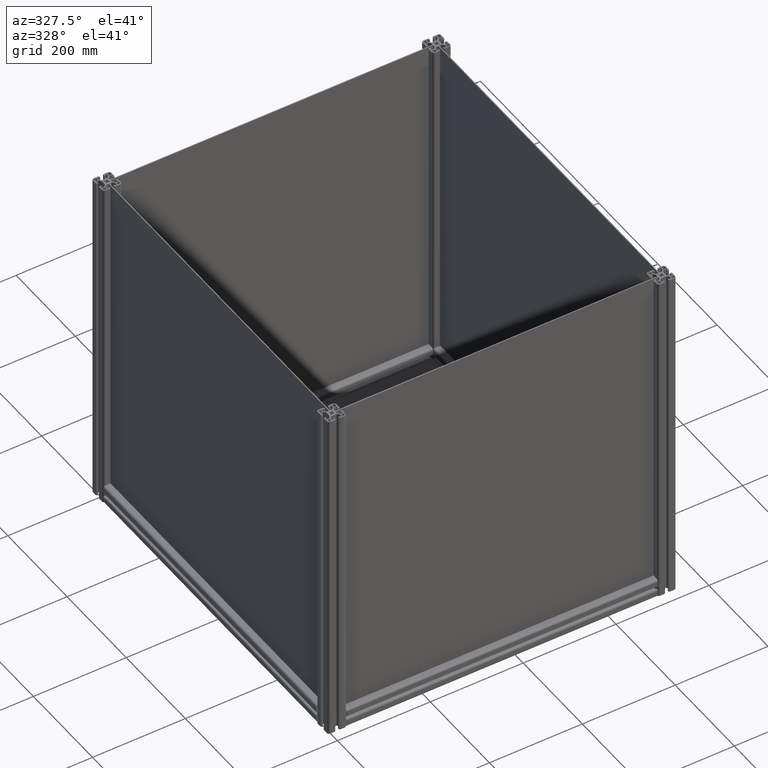
[diagram: clean part render]
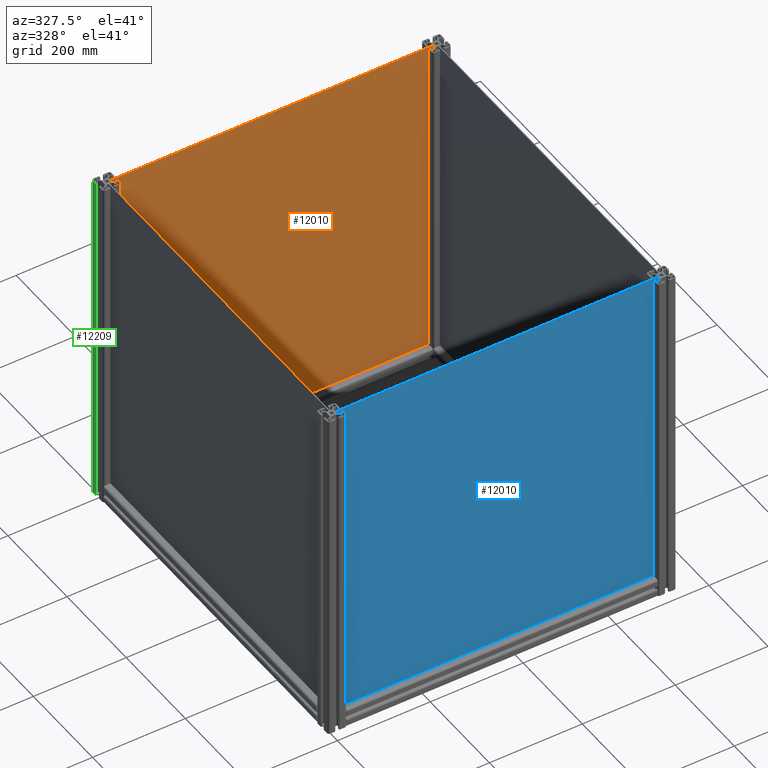
[diagram: same view with three faces highlighted in distinct colors, each labeled with its STEP entity id]
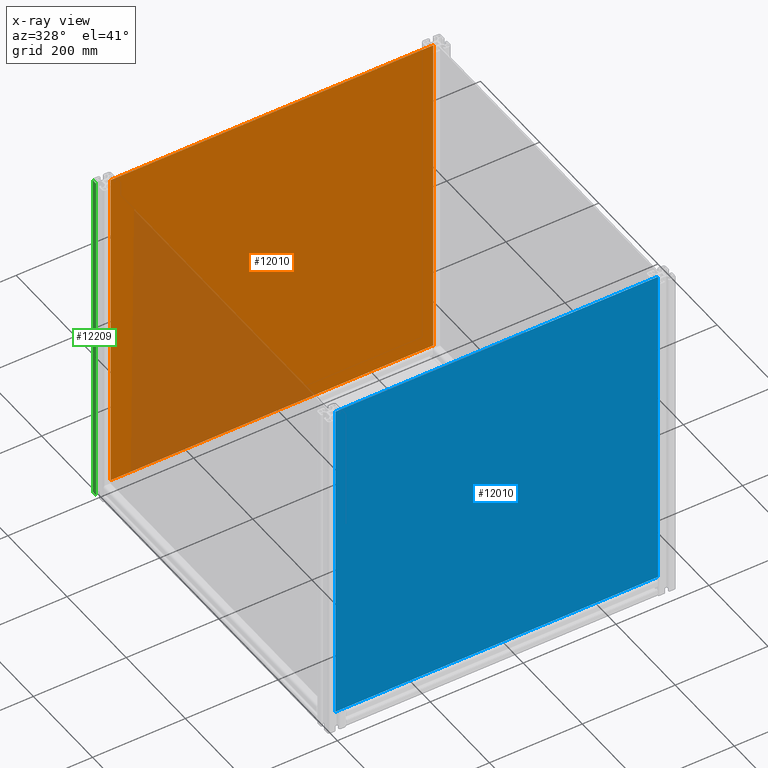
[diagram: x-ray of the same camera — body ghosted, the three highlighted faces saturated]
A machine part, auxiliary view with three faces highlighted in distinct colors.
The next image is the same camera in x-ray (body ghosted, the three faces saturated) — at least one of them is partly hidden behind the body in this view.
Their STEP definitions:

[orange] entity #12010 — the highlighted planar face has unit normal (0, 1, 0).
#161 = CARTESIAN_POINT ( 'NONE',  ( 94.07303754266186502, -486.9269624573379929, -2.000000000000000000 ) ) ;
#194 = LINE ( 'NONE', #14837, #5727 ) ;
#1227 = ORIENTED_EDGE ( 'NONE', *, *, #11155, .F. ) ;
#2917 = VERTEX_POINT ( 'NONE', #161 ) ;
#3395 = VERTEX_POINT ( 'NONE', #12340 ) ;
#3813 = VECTOR ( 'NONE', #12190, 1000.000000000000000 ) ;
#4709 = PLANE ( 'NONE',  #14745 ) ;
#5316 = VERTEX_POINT ( 'NONE', #15817 ) ;
#5727 = VECTOR ( 'NONE', #11140, 1000.000000000000000 ) ;
#6227 = CARTESIAN_POINT ( 'NONE',  ( 94.07303754266186502, -486.9269624573379929, -2.000000000000000000 ) ) ;
#7067 = ORIENTED_EDGE ( 'NONE', *, *, #13036, .F. ) ;
#7339 = DIRECTION ( 'NONE',  ( 0.000000000000000000, 0.000000000000000000, 1.000000000000000000 ) ) ;
#7406 = CARTESIAN_POINT ( 'NONE',  ( -600.7269624573378906, -486.9269624573379929, -2.000000000000000000 ) ) ;
#7898 = LINE ( 'NONE', #6227, #12992 ) ;
#8033 = ORIENTED_EDGE ( 'NONE', *, *, #12094, .F. ) ;
#8630 = EDGE_LOOP ( 'NONE', ( #7067, #8033, #12961, #1227 ) ) ;
#8886 = DIRECTION ( 'NONE',  ( -1.117974313196652496E-16, 1.000000000000000000, 0.000000000000000000 ) ) ;
#9426 = EDGE_CURVE ( 'NONE', #10561, #2917, #12438, .T. ) ;
#9450 = CARTESIAN_POINT ( 'NONE',  ( 0.000000000000000000, 0.000000000000000000, -2.000000000000000000 ) ) ;
#10041 = CARTESIAN_POINT ( 'NONE',  ( -600.7269624573378906, -486.9269624573379929, -2.000000000000000000 ) ) ;
#10561 = VERTEX_POINT ( 'NONE', #10041 ) ;
#10564 = CARTESIAN_POINT ( 'NONE',  ( 94.07303754266177975, 235.4730375426625812, -2.000000000000000000 ) ) ;
#10679 = DIRECTION ( 'NONE',  ( 1.000000000000000000, 0.000000000000000000, 0.000000000000000000 ) ) ;
#11140 = DIRECTION ( 'NONE',  ( 0.000000000000000000, -1.000000000000000000, 0.000000000000000000 ) ) ;
#11155 = EDGE_CURVE ( 'NONE', #5316, #10561, #194, .T. ) ;
#12010 = ADVANCED_FACE ( 'NONE', ( #13489 ), #4709, .F. ) ;
#12094 = EDGE_CURVE ( 'NONE', #2917, #3395, #7898, .T. ) ;
#12190 = DIRECTION ( 'NONE',  ( -1.000000000000000000, 0.000000000000000000, 0.000000000000000000 ) ) ;
#12340 = CARTESIAN_POINT ( 'NONE',  ( 94.07303754266177975, 235.4730375426625812, -2.000000000000000000 ) ) ;
#12438 = LINE ( 'NONE', #7406, #12694 ) ;
#12694 = VECTOR ( 'NONE', #16319, 1000.000000000000000 ) ;
#12961 = ORIENTED_EDGE ( 'NONE', *, *, #9426, .F. ) ;
#12992 = VECTOR ( 'NONE', #8886, 1000.000000000000000 ) ;
#13036 = EDGE_CURVE ( 'NONE', #3395, #5316, #15159, .T. ) ;
#13489 = FACE_OUTER_BOUND ( 'NONE', #8630, .T. ) ;
#14745 = AXIS2_PLACEMENT_3D ( 'NONE', #9450, #7339, #10679 ) ;
#14837 = CARTESIAN_POINT ( 'NONE',  ( -600.7269624573378906, 257.8730375426625301, -2.000000000000000000 ) ) ;
#15159 = LINE ( 'NONE', #10564, #3813 ) ;
#15817 = CARTESIAN_POINT ( 'NONE',  ( -600.7269624573378906, 235.4730375426625812, -2.000000000000000000 ) ) ;
#16319 = DIRECTION ( 'NONE',  ( 1.000000000000000000, 0.000000000000000000, 0.000000000000000000 ) ) ;

[blue] entity #12010 — the highlighted planar face has unit normal (0, 1, 0).
#161 = CARTESIAN_POINT ( 'NONE',  ( 94.07303754266186502, -486.9269624573379929, -2.000000000000000000 ) ) ;
#194 = LINE ( 'NONE', #14837, #5727 ) ;
#1227 = ORIENTED_EDGE ( 'NONE', *, *, #11155, .F. ) ;
#2917 = VERTEX_POINT ( 'NONE', #161 ) ;
#3395 = VERTEX_POINT ( 'NONE', #12340 ) ;
#3813 = VECTOR ( 'NONE', #12190, 1000.000000000000000 ) ;
#4709 = PLANE ( 'NONE',  #14745 ) ;
#5316 = VERTEX_POINT ( 'NONE', #15817 ) ;
#5727 = VECTOR ( 'NONE', #11140, 1000.000000000000000 ) ;
#6227 = CARTESIAN_POINT ( 'NONE',  ( 94.07303754266186502, -486.9269624573379929, -2.000000000000000000 ) ) ;
#7067 = ORIENTED_EDGE ( 'NONE', *, *, #13036, .F. ) ;
#7339 = DIRECTION ( 'NONE',  ( 0.000000000000000000, 0.000000000000000000, 1.000000000000000000 ) ) ;
#7406 = CARTESIAN_POINT ( 'NONE',  ( -600.7269624573378906, -486.9269624573379929, -2.000000000000000000 ) ) ;
#7898 = LINE ( 'NONE', #6227, #12992 ) ;
#8033 = ORIENTED_EDGE ( 'NONE', *, *, #12094, .F. ) ;
#8630 = EDGE_LOOP ( 'NONE', ( #7067, #8033, #12961, #1227 ) ) ;
#8886 = DIRECTION ( 'NONE',  ( -1.117974313196652496E-16, 1.000000000000000000, 0.000000000000000000 ) ) ;
#9426 = EDGE_CURVE ( 'NONE', #10561, #2917, #12438, .T. ) ;
#9450 = CARTESIAN_POINT ( 'NONE',  ( 0.000000000000000000, 0.000000000000000000, -2.000000000000000000 ) ) ;
#10041 = CARTESIAN_POINT ( 'NONE',  ( -600.7269624573378906, -486.9269624573379929, -2.000000000000000000 ) ) ;
#10561 = VERTEX_POINT ( 'NONE', #10041 ) ;
#10564 = CARTESIAN_POINT ( 'NONE',  ( 94.07303754266177975, 235.4730375426625812, -2.000000000000000000 ) ) ;
#10679 = DIRECTION ( 'NONE',  ( 1.000000000000000000, 0.000000000000000000, 0.000000000000000000 ) ) ;
#11140 = DIRECTION ( 'NONE',  ( 0.000000000000000000, -1.000000000000000000, 0.000000000000000000 ) ) ;
#11155 = EDGE_CURVE ( 'NONE', #5316, #10561, #194, .T. ) ;
#12010 = ADVANCED_FACE ( 'NONE', ( #13489 ), #4709, .F. ) ;
#12094 = EDGE_CURVE ( 'NONE', #2917, #3395, #7898, .T. ) ;
#12190 = DIRECTION ( 'NONE',  ( -1.000000000000000000, 0.000000000000000000, 0.000000000000000000 ) ) ;
#12340 = CARTESIAN_POINT ( 'NONE',  ( 94.07303754266177975, 235.4730375426625812, -2.000000000000000000 ) ) ;
#12438 = LINE ( 'NONE', #7406, #12694 ) ;
#12694 = VECTOR ( 'NONE', #16319, 1000.000000000000000 ) ;
#12961 = ORIENTED_EDGE ( 'NONE', *, *, #9426, .F. ) ;
#12992 = VECTOR ( 'NONE', #8886, 1000.000000000000000 ) ;
#13036 = EDGE_CURVE ( 'NONE', #3395, #5316, #15159, .T. ) ;
#13489 = FACE_OUTER_BOUND ( 'NONE', #8630, .T. ) ;
#14745 = AXIS2_PLACEMENT_3D ( 'NONE', #9450, #7339, #10679 ) ;
#14837 = CARTESIAN_POINT ( 'NONE',  ( -600.7269624573378906, 257.8730375426625301, -2.000000000000000000 ) ) ;
#15159 = LINE ( 'NONE', #10564, #3813 ) ;
#15817 = CARTESIAN_POINT ( 'NONE',  ( -600.7269624573378906, 235.4730375426625812, -2.000000000000000000 ) ) ;
#16319 = DIRECTION ( 'NONE',  ( 1.000000000000000000, 0.000000000000000000, 0.000000000000000000 ) ) ;

[green] entity #12209 — the highlighted planar face has unit normal (1, 0, 0).
#204 = VERTEX_POINT ( 'NONE', #13726 ) ;
#762 = DIRECTION ( 'NONE',  ( 0.000000000000000000, 0.000000000000000000, -1.000000000000000000 ) ) ;
#1735 = AXIS2_PLACEMENT_3D ( 'NONE', #4323, #9479, #1781 ) ;
#1781 = DIRECTION ( 'NONE',  ( 0.000000000000000000, 1.000000000000000000, 0.000000000000000000 ) ) ;
#2064 = FACE_OUTER_BOUND ( 'NONE', #11185, .T. ) ;
#2139 = CARTESIAN_POINT ( 'NONE',  ( -20.00000000000000000, 15.50000000000494893, 600.0000000000000000 ) ) ;
#2322 = ORIENTED_EDGE ( 'NONE', *, *, #3736, .F. ) ;
#2679 = LINE ( 'NONE', #13270, #13960 ) ;
#2914 = PLANE ( 'NONE',  #1735 ) ;
#3736 = EDGE_CURVE ( 'NONE', #7953, #14933, #16092, .T. ) ;
#4323 = CARTESIAN_POINT ( 'NONE',  ( -20.00000000000000000, 15.50000000000494893, 800.0000000000000000 ) ) ;
#5238 = VERTEX_POINT ( 'NONE', #9533 ) ;
#6585 = CARTESIAN_POINT ( 'NONE',  ( -20.00000000000000000, 15.50000000000494893, 600.0000000000000000 ) ) ;
#6751 = DIRECTION ( 'NONE',  ( 0.000000000000000000, 1.000000000000000000, 0.000000000000000000 ) ) ;
#6899 = CARTESIAN_POINT ( 'NONE',  ( -20.00000000000000000, 15.50000000000494893, 800.0000000000000000 ) ) ;
#7953 = VERTEX_POINT ( 'NONE', #9982 ) ;
#8860 = EDGE_CURVE ( 'NONE', #14933, #5238, #11607, .T. ) ;
#9152 = CARTESIAN_POINT ( 'NONE',  ( -20.00000000000000000, 5.100000000000360245, -150.0000000000000000 ) ) ;
#9479 = DIRECTION ( 'NONE',  ( 1.000000000000000000, 0.000000000000000000, 0.000000000000000000 ) ) ;
#9533 = CARTESIAN_POINT ( 'NONE',  ( -20.00000000000000000, 5.100000000000360245, 600.0000000000000000 ) ) ;
#9982 = CARTESIAN_POINT ( 'NONE',  ( -20.00000000000000000, 15.50000000000494893, -150.0000000000000000 ) ) ;
#10382 = DIRECTION ( 'NONE',  ( 0.000000000000000000, 0.000000000000000000, 1.000000000000000000 ) ) ;
#10906 = DIRECTION ( 'NONE',  ( 0.000000000000000000, -1.000000000000000000, 0.000000000000000000 ) ) ;
#11185 = EDGE_LOOP ( 'NONE', ( #14749, #2322, #12775, #14939 ) ) ;
#11607 = LINE ( 'NONE', #2139, #11974 ) ;
#11974 = VECTOR ( 'NONE', #10906, 1000.000000000000000 ) ;
#12209 = ADVANCED_FACE ( 'NONE', ( #2064 ), #2914, .F. ) ;
#12775 = ORIENTED_EDGE ( 'NONE', *, *, #15200, .F. ) ;
#13270 = CARTESIAN_POINT ( 'NONE',  ( -20.00000000000000000, 5.100000000000360245, 800.0000000000000000 ) ) ;
#13511 = LINE ( 'NONE', #9152, #13740 ) ;
#13726 = CARTESIAN_POINT ( 'NONE',  ( -20.00000000000000000, 5.100000000000360245, -150.0000000000000000 ) ) ;
#13740 = VECTOR ( 'NONE', #6751, 1000.000000000000000 ) ;
#13960 = VECTOR ( 'NONE', #762, 1000.000000000000000 ) ;
#14749 = ORIENTED_EDGE ( 'NONE', *, *, #8860, .F. ) ;
#14933 = VERTEX_POINT ( 'NONE', #6585 ) ;
#14939 = ORIENTED_EDGE ( 'NONE', *, *, #15800, .F. ) ;
#15200 = EDGE_CURVE ( 'NONE', #204, #7953, #13511, .T. ) ;
#15800 = EDGE_CURVE ( 'NONE', #5238, #204, #2679, .T. ) ;
#15923 = VECTOR ( 'NONE', #10382, 1000.000000000000000 ) ;
#16092 = LINE ( 'NONE', #6899, #15923 ) ;